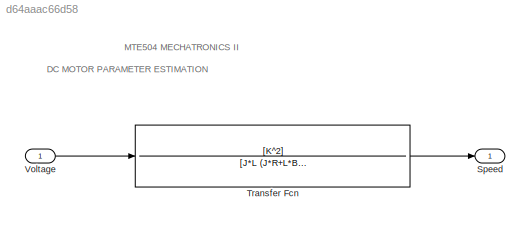
MODEL slx_d64aaac66d58
KIND model
CONFIG AbsTol = auto
CONFIG EnableMultiTasking = off
CONFIG FixedStep = 0.1
CONFIG MaxStep = auto
CONFIG MinStep = auto
CONFIG RelTol = 1e-3
CONFIG SampleTimeConstraint = Unconstrained
CONFIG SolverName = FixedStepAuto
CONFIG StartTime = 0.0
CONFIG StopTime = 10
WORKSPACE source: mxarray member
WORKSPACE B = 0.0485888914465
WORKSPACE J = 0.00206736338989
WORKSPACE K = 0.275598217119
WORKSPACE L = 6.73660207933
WORKSPACE R = 1.20990761115
BLOCK [Outport] Speed
BLOCK [TransferFcn] Transfer Fcn
  ContinuousStateAttributes = 'speed'
  Denominator = [J*L (J*R+L*B) B*R+K^2]
  Numerator = [K^2]
BLOCK [Inport] Voltage
ANNOTATION (root): MTE504 MECHATRONICS II
ANNOTATION (root): DC MOTOR PARAMETER ESTIMATION
LINE Transfer Fcn:1 -> Speed:1
LINE Voltage:1 -> Transfer Fcn:1
